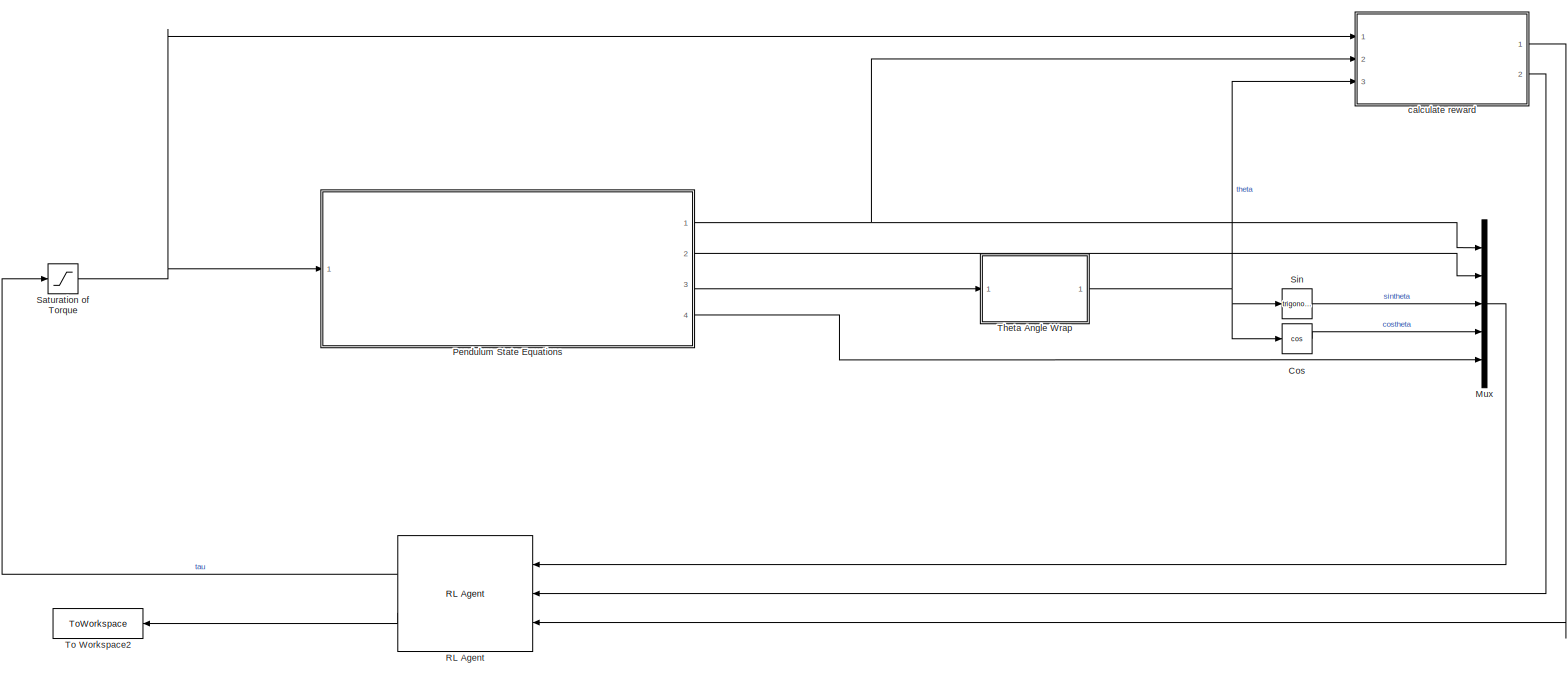
[diagram: root canvas - part 1/1, most of the canvas]
MODEL slx_2b19068e52f2
KIND model
CONFIG AbsTol = auto
CONFIG EnableMultiTasking = off
CONFIG FixedStep = auto
CONFIG MaxStep = auto
CONFIG MinStep = auto
CONFIG RelTol = 1e-3
CONFIG SampleTimeConstraint = Unconstrained
CONFIG Solver = VariableStepAuto
CONFIG SolverName = VariableStepAuto
CONFIG StartTime = 0.0
CONFIG StopTime = 10.0
BLOCK [Trigonometry] Cos
  Operator = cos
  Ports = [1, 1]
BLOCK [Mux] Mux
  DisplayOption = bar
  Inputs = 5
  Ports = [5, 1]
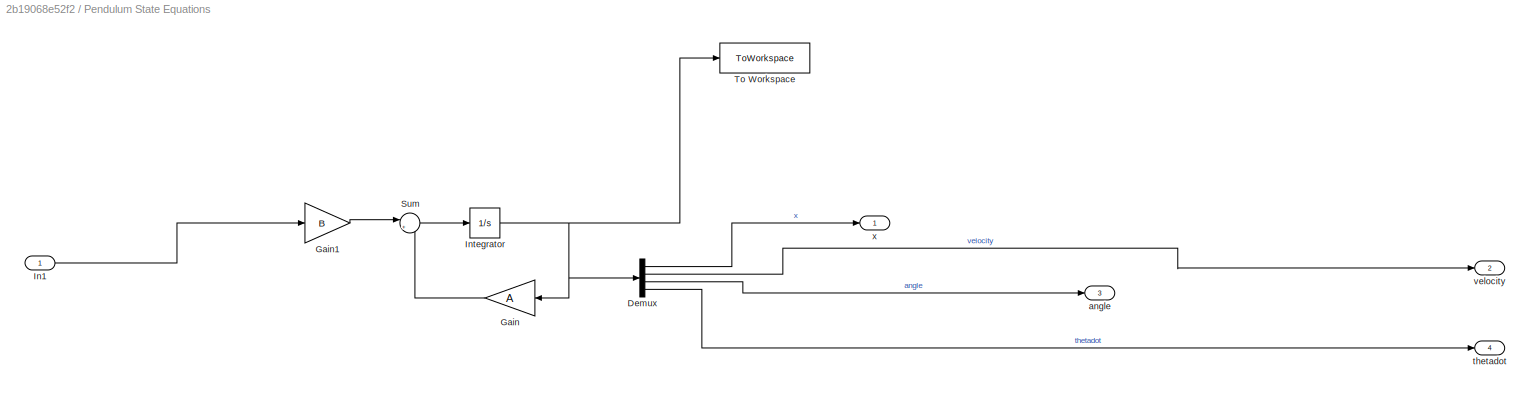
BLOCK [SubSystem] Pendulum State Equations
  Ports = [1, 4]
  RequestExecContextInheritance = off
BLOCK [Demux] Pendulum State Equations/Demux
  Ports = [1, 4]
BLOCK [Gain] Pendulum State Equations/Gain
  Gain = A
  Multiplication = Matrix(K*u) (u vector)
  NameLocation = top
BLOCK [Gain] Pendulum State Equations/Gain1
  Gain = B
BLOCK [Inport] Pendulum State Equations/In1
BLOCK [Integrator] Pendulum State Equations/Integrator
  InitialCondition = y0
  Ports = [1, 1]
BLOCK [Sum] Pendulum State Equations/Sum
  Inputs = |++
  Ports = [2, 1]
BLOCK [ToWorkspace] Pendulum State Equations/To Workspace
  FixptAsFi = on
  MaxDataPoints = inf
  Ports = [1]
  SampleTime = -1
  SaveFormat = Timeseries
  VariableName = pendulumoutput
BLOCK [Outport] Pendulum State Equations/angle
  Port = 3
BLOCK [Outport] Pendulum State Equations/thetadot
  Port = 4
BLOCK [Outport] Pendulum State Equations/velocity
  Port = 2
BLOCK [Outport] Pendulum State Equations/x
BLOCK [Reference] RL Agent  REF=rllib/RL Agent
  NameLocation = top
  Ports = [3, 2]
  SourceBlock = rllib/RL Agent
  SourceProductBaseCode = RL
  SourceType = RL Agent
BLOCK [Saturate] Saturation of Torque
  LowerLimit = -10
  UpperLimit = 10
BLOCK [Trigonometry] Sin
  OutputSignalType = real
  Ports = [1, 1]
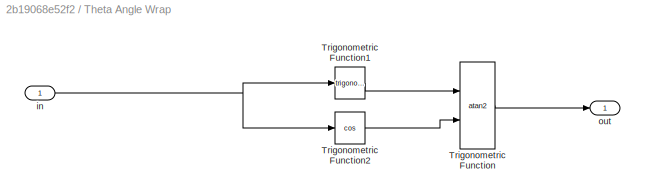
BLOCK [SubSystem] Theta Angle Wrap 
  Ports = [1, 1]
  RequestExecContextInheritance = off
BLOCK [Trigonometry] Theta Angle Wrap /Trigonometric Function
  Operator = atan2
  OutputSignalType = real
  Ports = [2, 1]
BLOCK [Trigonometry] Theta Angle Wrap /Trigonometric Function1
  Ports = [1, 1]
BLOCK [Trigonometry] Theta Angle Wrap /Trigonometric Function2
  Operator = cos
  Ports = [1, 1]
BLOCK [Inport] Theta Angle Wrap /in
BLOCK [Outport] Theta Angle Wrap /out
BLOCK [ToWorkspace] To Workspace2
  FixptAsFi = on
  MaxDataPoints = inf
  NameLocation = top
  Ports = [1]
  SampleTime = -1
  SaveFormat = Timeseries
  VariableName = totalreward
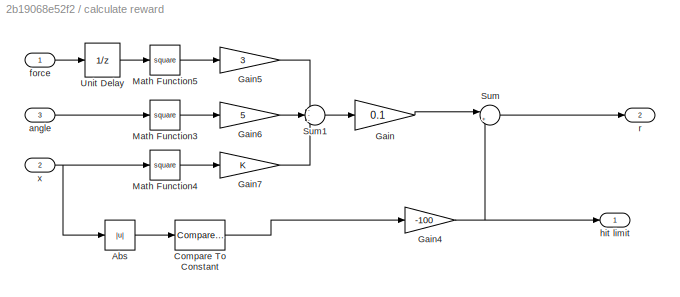
BLOCK [SubSystem] calculate reward
  Ports = [3, 2]
  RequestExecContextInheritance = off
BLOCK [Abs] calculate reward/Abs
  SaturateOnIntegerOverflow = off
BLOCK [Reference] calculate reward/Compare To Constant  REF=simulink/Logic and Bit
Operations/Compare
To Constant
  Ports = [1, 1]
  SourceBlock = simulink/Logic and Bit\nOperations/Compare\nTo Constant
  SourceProductBaseCode = SL
  SourceType = Compare To Constant
BLOCK [Gain] calculate reward/Gain
  Gain = 0.1
BLOCK [Gain] calculate reward/Gain4
  Gain = -100
BLOCK [Gain] calculate reward/Gain5
  Gain = 3
BLOCK [Gain] calculate reward/Gain6
  Gain = 5
BLOCK [Gain] calculate reward/Gain7
BLOCK [Math] calculate reward/Math Function3
  Operator = square
  Ports = [1, 1]
  SignedPower = on
BLOCK [Math] calculate reward/Math Function4
  Operator = square
  Ports = [1, 1]
  SignedPower = on
BLOCK [Math] calculate reward/Math Function5
  Operator = square
  Ports = [1, 1]
  SignedPower = on
BLOCK [Sum] calculate reward/Sum
  Inputs = |++
  Ports = [2, 1]
BLOCK [Sum] calculate reward/Sum1
  Inputs = ---
  Ports = [3, 1]
BLOCK [UnitDelay] calculate reward/Unit Delay
  HasFrameUpgradeWarning = on
  SampleTime = -1
BLOCK [Inport] calculate reward/angle
  Port = 3
BLOCK [Inport] calculate reward/force
BLOCK [Outport] calculate reward/hit limit
  VectorParamsAs1DForOutWhenUnconnected = off
BLOCK [Outport] calculate reward/r
  Port = 2
  VectorParamsAs1DForOutWhenUnconnected = off
BLOCK [Inport] calculate reward/x
  Port = 2
LINE Cos:1 -> Mux:4
LINE Mux:1 -> RL Agent:1
LINE Pendulum State Equations/Demux:1 -> Pendulum State Equations/x:1
LINE Pendulum State Equations/Demux:2 -> Pendulum State Equations/velocity:1
LINE Pendulum State Equations/Demux:3 -> Pendulum State Equations/angle:1
LINE Pendulum State Equations/Demux:4 -> Pendulum State Equations/thetadot:1
LINE Pendulum State Equations/Gain1:1 -> Pendulum State Equations/Sum:1
LINE Pendulum State Equations/Gain:1 -> Pendulum State Equations/Sum:2
LINE Pendulum State Equations/In1:1 -> Pendulum State Equations/Gain1:1
NET Pendulum State Equations/Integrator:1 -> Pendulum State Equations/Demux:1, Pendulum State Equations/Gain:1, Pendulum State Equations/To Workspace:1
LINE Pendulum State Equations/Sum:1 -> Pendulum State Equations/Integrator:1
NET Pendulum State Equations:1 -> Mux:1, calculate reward:2
LINE Pendulum State Equations:2 -> Mux:2
LINE Pendulum State Equations:3 -> Theta Angle Wrap :1
LINE Pendulum State Equations:4 -> Mux:5
LINE RL Agent:1 -> Saturation of Torque:1
LINE RL Agent:2 -> To Workspace2:1
NET Saturation of Torque:1 -> Pendulum State Equations:1, calculate reward:1
LINE Sin:1 -> Mux:3
LINE Theta Angle Wrap /Trigonometric Function1:1 -> Theta Angle Wrap /Trigonometric Function:1
LINE Theta Angle Wrap /Trigonometric Function2:1 -> Theta Angle Wrap /Trigonometric Function:2
LINE Theta Angle Wrap /Trigonometric Function:1 -> Theta Angle Wrap /out:1
NET Theta Angle Wrap /in:1 -> Theta Angle Wrap /Trigonometric Function1:1, Theta Angle Wrap /Trigonometric Function2:1
NET Theta Angle Wrap :1 -> Cos:1, Sin:1, calculate reward:3
LINE calculate reward/Abs:1 -> calculate reward/Compare To Constant:1
LINE calculate reward/Compare To Constant:1 -> calculate reward/Gain4:1
NET calculate reward/Gain4:1 -> calculate reward/Sum:2, calculate reward/hit limit:1
LINE calculate reward/Gain5:1 -> calculate reward/Sum1:1
LINE calculate reward/Gain6:1 -> calculate reward/Sum1:2
LINE calculate reward/Gain7:1 -> calculate reward/Sum1:3
LINE calculate reward/Gain:1 -> calculate reward/Sum:1
LINE calculate reward/Math Function3:1 -> calculate reward/Gain6:1
LINE calculate reward/Math Function4:1 -> calculate reward/Gain7:1
LINE calculate reward/Math Function5:1 -> calculate reward/Gain5:1
LINE calculate reward/Sum1:1 -> calculate reward/Gain:1
LINE calculate reward/Sum:1 -> calculate reward/r:1
LINE calculate reward/Unit Delay:1 -> calculate reward/Math Function5:1
LINE calculate reward/angle:1 -> calculate reward/Math Function3:1
LINE calculate reward/force:1 -> calculate reward/Unit Delay:1
NET calculate reward/x:1 -> calculate reward/Abs:1, calculate reward/Math Function4:1
LINE calculate reward:1 -> RL Agent:3
LINE calculate reward:2 -> RL Agent:2
note: NET lines group one-source signal fan-out (src -> all destinations, sorted); 1:1 wires keep LINE
